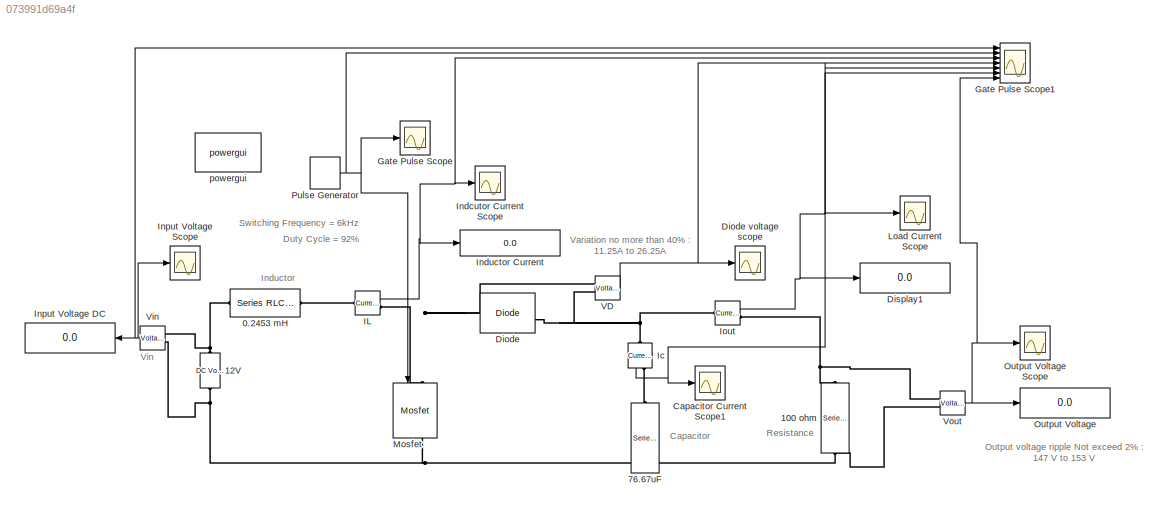
MODEL slx_073991d69a4f
KIND model
BLOCK [Reference] 0.2453 mH  REF=powerlib/Elements/Series RLC Branch
  BranchType = L
  Capacitance = 1e-6
  Inductance = 0.2453e-3
  InitialCurrent = 0
  InitialVoltage = 0
  LConnTagsString = __new0
  Measurements = None
  Ports = [0, 0, 0, 0, 0, 1, 1]
  RConnTagsString = __new0
  Resistance = 1
  SetiL0 = off
  Setx0 = off
  SourceBlock = powerlib/Elements/Series RLC Branch
  SourceType = Series RLC Branch
BLOCK [Reference] 100 ohm  REF=powerlib/Elements/Series RLC Branch
  BranchType = R
  Capacitance = 1e-6
  Inductance = 1e-3
  InitialCurrent = 0
  InitialVoltage = 0
  LConnTagsString = __new0
  Measurements = None
  Ports = [0, 0, 0, 0, 0, 1, 1]
  RConnTagsString = __new0
  Resistance = 100
  SetiL0 = off
  Setx0 = off
  SourceBlock = powerlib/Elements/Series RLC Branch
  SourceType = Series RLC Branch
BLOCK [Reference] 12V  REF=powerlib/Electrical
Sources/DC Voltage Source
  Amplitude = 12
  Measurements = None
  Ports = [0, 0, 0, 0, 0, 1, 1]
  SourceBlock = powerlib/Electrical\nSources/DC Voltage Source
  SourceType = DC Voltage Source
BLOCK [Reference] 76.67uF  REF=powerlib/Elements/Series RLC Branch
  BranchType = C
  Capacitance = 76.67e-6
  Inductance = 1e-3
  InitialCurrent = 0
  InitialVoltage = 0
  LConnTagsString = __new0
  Measurements = None
  Ports = [0, 0, 0, 0, 0, 1, 1]
  RConnTagsString = __new0
  Resistance = 1
  SetiL0 = off
  Setx0 = off
  SourceBlock = powerlib/Elements/Series RLC Branch
  SourceType = Series RLC Branch
BLOCK [Scope] Capacitor  Current Scope1
  DataFormat = StructureWithTime
  Floating = off
  LegendLocations = 0.93481      0.9241    0.034896    0.021093
  LimitDataPoints = off
  NumInputPorts = 1
  Ports = [1]
  SampleTime = 0
  SaveName = ScopeData4
  ShowLegends = on
  TimeRange = 20
  YMax = 25
  YMin = -175
  ZoomMode = xonly
BLOCK [Reference] Diode  REF=powerlib/Power
Electronics/Diode
  Cs = 0
  IC = 0
  Lon = 0
  Measurements = on
  Ports = [0, 1, 0, 0, 0, 1, 1]
  Ron = 0.00001
  Rs = 0
  SourceBlock = powerlib/Power\nElectronics/Diode
  SourceType = Diode
  UseSnubber = off
  Vf = 0
BLOCK [Scope] Diode voltage scope
  DataFormat = StructureWithTime
  Floating = off
  LegendLocations = 0.93481      0.9241    0.038021    0.021093
  LimitDataPoints = off
  NumInputPorts = 1
  Ports = [1]
  SampleTime = 0
  SaveName = ScopeData1
  ShowLegends = on
  TimeRange = 20
  YMax = 25
  YMin = -175
  ZoomMode = xonly
BLOCK [Display] Display1
  Decimation = 1
  Lockdown = off
  Ports = [1]
BLOCK [Scope] Gate Pulse Scope
  DataFormat = StructureWithTime
  Floating = off
  LegendLocations = 0.9145     0.94036    0.069792    0.021071
  LimitDataPoints = off
  NumInputPorts = 1
  Ports = [1]
  SampleTime = 0
  SaveName = ScopeData2
  ShowLegends = on
  TimeRange = 20
  YMax = 1.5
  YMin = -1
  ZoomMode = xonly
BLOCK [Scope] Gate Pulse Scope1
  DataFormat = StructureWithTime
  Floating = off
  LegendLocations = 0.94158     0.93621    0.038021    0.021071\n0.91424     0.80499    0.069792    0.021071\n0.94913      0.6691    0.034896    0.021071\n0.94601     0.53321    0.038021    0.021071\n0.94913     0.39731    0.034896    0.021071\n0.94444      0.2635    0.039583    0.021071\n0.94236     0.12657    0.041667    0.021071
  LimitDataPoints = off
  NumInputPorts = 7
  Ports = [7]
  SampleTime = 0
  SaveName = ScopeData7
  ShowLegends = on
  TimeRange = 20
  YMax = 25~1.5~5~5~5~5~5
  YMin = -175~-5~-5~-5~-5~-5~-5
  ZoomMode = yonly
BLOCK [Reference] IL  REF=powerlib/Measurements/Current Measurement
  OutputType = Complex
  PSBequivalent = 0
  PhasorSimulation = off
  Ports = [0, 1, 0, 0, 0, 1, 1]
  SourceBlock = powerlib/Measurements/Current Measurement
  SourceType = Current Measurement
BLOCK [Reference] Ic  REF=powerlib/Measurements/Current Measurement
  OutputType = Complex
  PSBequivalent = 0
  PhasorSimulation = off
  Ports = [0, 1, 0, 0, 0, 1, 1]
  SourceBlock = powerlib/Measurements/Current Measurement
  SourceType = Current Measurement
BLOCK [Scope] Indcutor  Current Scope
  DataFormat = StructureWithTime
  Floating = off
  LegendLocations = 0.93481      0.9241    0.034896    0.021093
  LimitDataPoints = off
  NumInputPorts = 1
  Ports = [1]
  SampleTime = 0
  SaveName = ScopeData3
  ShowLegends = on
  TimeRange = 20
  YMax = 25
  YMin = -175
  ZoomMode = xonly
BLOCK [Display] Inductor Current
  Decimation = 1
  Lockdown = off
  Ports = [1]
BLOCK [Display] Input Voltage DC
  Decimation = 1
  Lockdown = off
  Ports = [1]
BLOCK [Scope] Input Voltage Scope
  DataFormat = StructureWithTime
  Floating = off
  LegendLocations = 0.93481      0.9241    0.038421     0.02154
  LimitDataPoints = off
  NumInputPorts = 1
  Ports = [1]
  SampleTime = 0
  ShowLegends = on
  TimeRange = 20
  YMax = 12.5
  YMin = 11.5
  ZoomMode = yonly
BLOCK [Reference] Iout  REF=powerlib/Measurements/Current Measurement
  OutputType = Complex
  PSBequivalent = 0
  PhasorSimulation = off
  Ports = [0, 1, 0, 0, 0, 1, 1]
  SourceBlock = powerlib/Measurements/Current Measurement
  SourceType = Current Measurement
BLOCK [Scope] Load Current Scope
  DataFormat = StructureWithTime
  Floating = off
  LegendLocations = 0.93481      0.9241    0.039583    0.021093
  LimitDataPoints = off
  NumInputPorts = 1
  Ports = [1]
  SampleTime = 0
  SaveName = ScopeData5
  ShowLegends = on
  TimeRange = 20
  YMax = 25
  YMin = -175
  ZoomMode = xonly
BLOCK [Reference] Mosfet  REF=powerlib/Power
Electronics/Mosfet
  Cs = inf
  IC = 0
  Lon = 0
  Measurements = on
  Ports = [1, 1, 0, 0, 0, 1, 1]
  Rd = 0.001
  Ron = 0.0001
  Rs = 500
  SourceBlock = powerlib/Power\nElectronics/Mosfet
  SourceType = Mosfet
  Vfd = 0
BLOCK [Display] Output Voltage
  Decimation = 1
  Lockdown = off
  Ports = [1]
BLOCK [Scope] Output Voltage Scope
  DataFormat = StructureWithTime
  Floating = off
  LegendLocations = 0.93481      0.9241    0.049479    0.037344
  LimitDataPoints = off
  NumInputPorts = 1
  Ports = [1]
  SampleTime = 0
  SaveName = ScopeData6
  ShowLegends = on
  TimeRange = 20
  YMax = 25
  YMin = -175
  ZoomMode = xonly
BLOCK [DiscretePulseGenerator] Pulse Generator
  Period = 1/6000
  Ports = [0, 1]
  PulseType = Time based
  PulseWidth = 92
BLOCK [Reference] VD  REF=powerlib/Measurements/Voltage Measurement
  OutputType = Complex
  PSBequivalent = 0
  PhasorSimulation = off
  Ports = [0, 1, 0, 0, 0, 2]
  SourceBlock = powerlib/Measurements/Voltage Measurement
  SourceType = Voltage Measurement
BLOCK [Reference] Vin  REF=powerlib/Measurements/Voltage Measurement
  OutputType = Complex
  PSBequivalent = 0
  PhasorSimulation = off
  Ports = [0, 1, 0, 0, 0, 2]
  SourceBlock = powerlib/Measurements/Voltage Measurement
  SourceType = Voltage Measurement
BLOCK [Reference] Vout  REF=powerlib/Measurements/Voltage Measurement
  OutputType = Complex
  PSBequivalent = 0
  PhasorSimulation = off
  Ports = [0, 1, 0, 0, 0, 2]
  SourceBlock = powerlib/Measurements/Voltage Measurement
  SourceType = Voltage Measurement
BLOCK [Reference] powergui  REF=powerlib/powergui
  DisableRonSwitches = off
  DisableSnubberDevices = off
  DisableVfSwitches = off
  DisplayEquations = off
  DisplayStyle = 1
  EnableUseOfTLC = off
  ErrMax = 1e-4
  Frange = [0:2:500]
  FreqAxis = off
  FunctionMessages = off
  HookPort = off
  Interpol = off
  Iterations = 50
  MaxFrequency = 1000
  Pbase = 100e6
  Ports = []
  Priority = 1
  ResistiveCurrentMeasurement = off
  RestoreLinks = warning
  RmsSteady = 1
  SPID = off
  SampleTime = 50e-6
  ShowGrid = off
  SolverType = Tustin
  SourceBlock = powerlib/powergui
  SourceType = PSB option menu block
  StartTime = 0.0
  SwTol = 0
  Ts = 0
  UnitsV = kV
  UnitsW = MW
  UserDataPersistent = on
  Xlog = on
  Ylog = off
  ZoomFFT = off
  cycles = 1
  display = off
  echomessages = off
  frequency = 60
  frequencyindice = 0
  frequencyindicesteady = 1
  fundamental = 60
  methode = off
  save = off
  variable = ZData
  x0status = blocks
ANNOTATION (root): Capacitor
ANNOTATION (root): Duty Cycle = 92%
ANNOTATION (root): Inductor
ANNOTATION (root): Output voltage ripple Not exceed 2% : 147 V to 153 V
ANNOTATION (root): Resistance
ANNOTATION (root): Switching Frequency = 6kHz
ANNOTATION (root): Variation no more than 40% : 11.25A to 26.25A
ANNOTATION (root): Vin
NET IL:1 -> Gate Pulse Scope1:3, Indcutor  Current Scope:1, Inductor Current:1
NET Ic:1 -> Capacitor  Current Scope1:1, Gate Pulse Scope1:5
NET Iout:1 -> Display1:1, Gate Pulse Scope1:6, Load Current Scope:1
NET Pulse Generator:1 -> Gate Pulse Scope1:2, Gate Pulse Scope:1, Mosfet:1
NET VD:1 -> Diode voltage scope:1, Gate Pulse Scope1:4
NET Vin:1 -> Gate Pulse Scope1:1, Input Voltage DC:1, Input Voltage Scope:1
NET Vout:1 -> Gate Pulse Scope1:7, Output Voltage Scope:1, Output Voltage:1
PNET net1: 0.2453 mH:LConn1 -- 12V:RConn1 -- Vin:LConn1
PLINE 0.2453 mH:RConn1 -- IL:LConn1
PNET net2: 100 ohm:LConn1 -- Iout:RConn1 -- Vout:LConn1
PNET net3: 100 ohm:RConn1 -- 12V:LConn1 -- 76.67uF:RConn1 -- Mosfet:RConn1 -- Vin:LConn2 -- Vout:LConn2
PLINE 76.67uF:LConn1 -- Ic:RConn1
PNET net4: Diode:LConn1 -- IL:RConn1 -- Mosfet:LConn1 -- VD:LConn1
PNET net5: Diode:RConn1 -- Ic:LConn1 -- Iout:LConn1 -- VD:LConn2
note: NET lines group one-source signal fan-out (src -> all destinations, sorted); 1:1 wires keep LINE; PNET lines group multi-terminal physical nets as a canonical sorted terminal list (undirected conserving connections); 2-terminal nets keep the pairwise PLINE form
